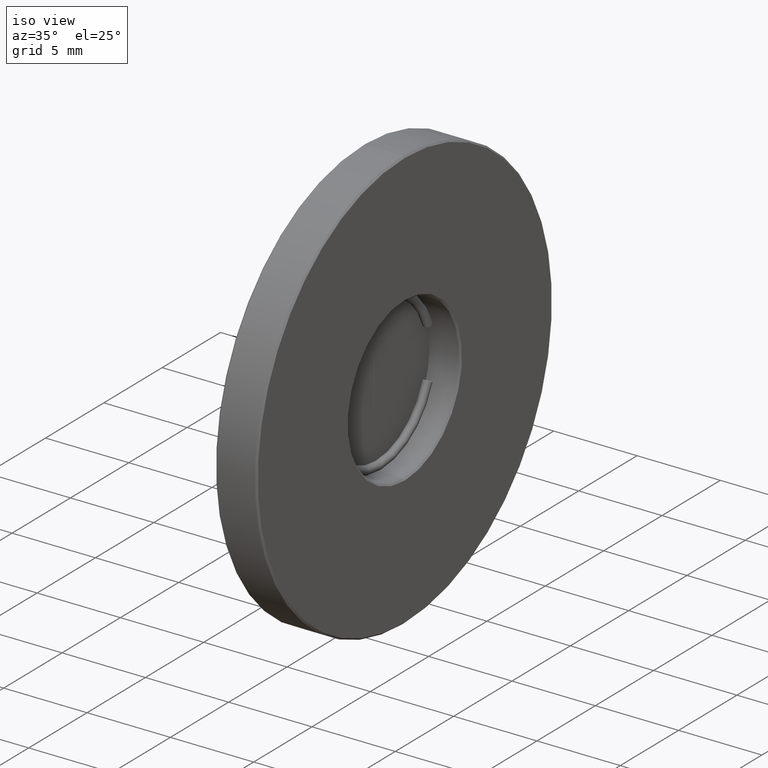
[diagram: clean part render]
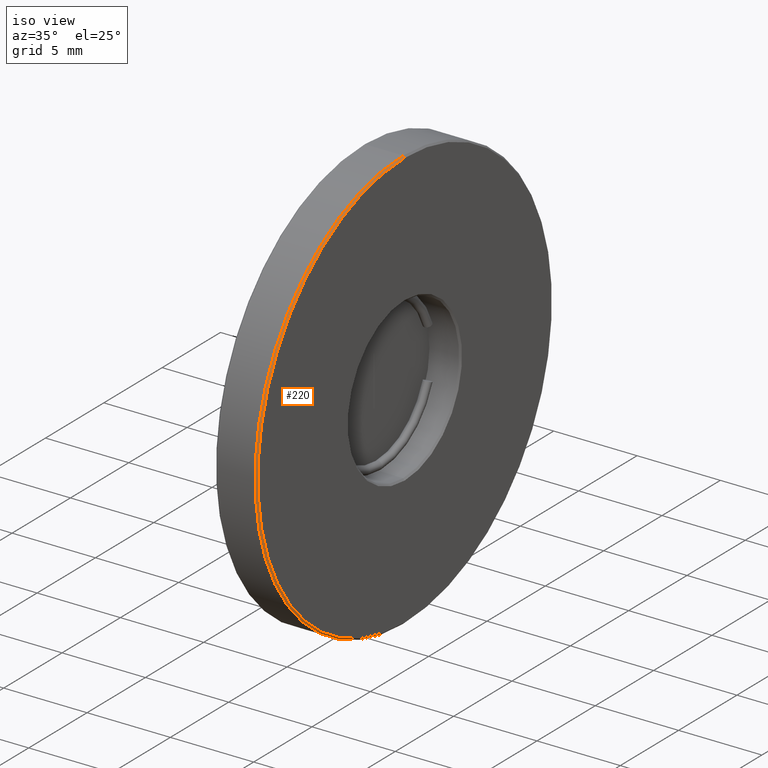
[diagram: same view with one face highlighted and labeled with its STEP entity id]
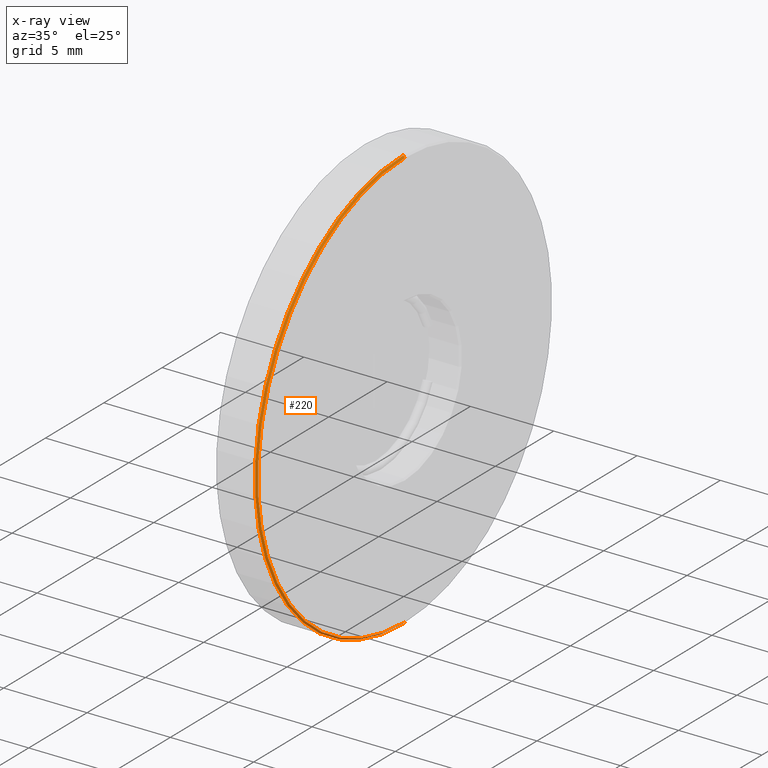
[diagram: x-ray of the same camera — body ghosted, the highlighted face saturated]
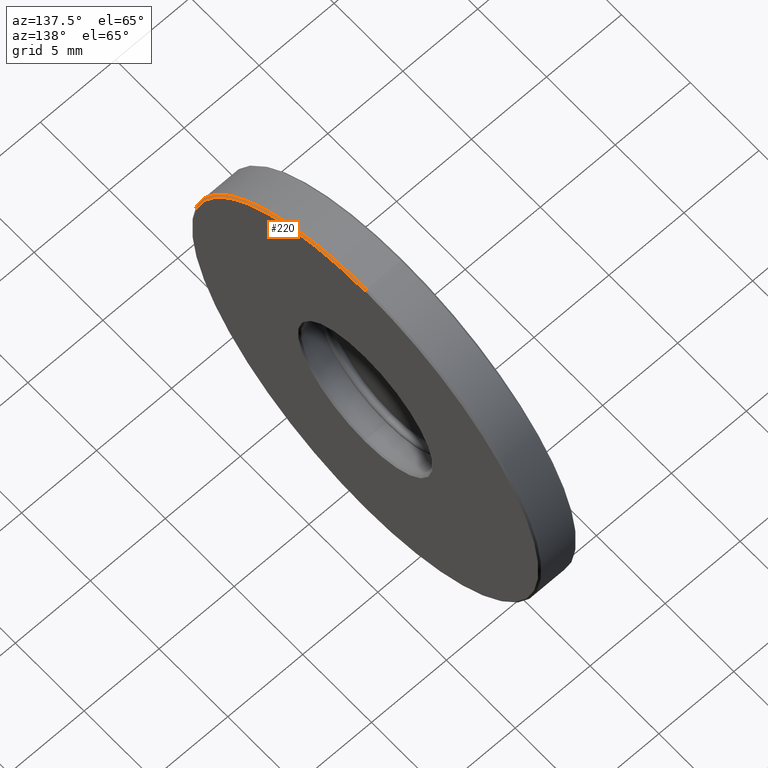
[diagram: same view with one face highlighted and labeled with its STEP entity id]
A machine part, iso view. The second image highlights one B-rep face of the part: STEP entity #220.
The next image is the same camera in x-ray: the body ghosted, the highlighted face saturated — about 0% of this face is hidden behind the body in this view.
A second angle (auxiliary view) of the same face is appended — the face is thin or edge-on in the first view.
In plain terms, the highlighted conical surface has half-angle 45 deg.
Its self-contained STEP definition (entity closure, byte-faithful):
#23 = CARTESIAN_POINT ( 'NONE',  ( -2.434863851252999645, 1.436758841085000071, 25.39999999999999858 ) ) ;
#36 = CARTESIAN_POINT ( 'NONE',  ( -2.434863851252999645, 1.436758841085000071, 25.39999999999999858 ) ) ;
#38 = VERTEX_POINT ( 'NONE', #520 ) ;
#74 = EDGE_CURVE ( 'NONE', #714, #585, #489, .T. ) ;
#90 = AXIS2_PLACEMENT_3D ( 'NONE', #36, #201, #932 ) ;
#107 = ORIENTED_EDGE ( 'NONE', *, *, #74, .F. ) ;
#155 = CARTESIAN_POINT ( 'NONE',  ( -2.534863851253000178, 1.436758841085000071, 25.39999999999999858 ) ) ;
#163 = CONICAL_SURFACE ( 'NONE', #90, 12.59999999999999964, 0.7853981633974568277 ) ;
#197 = CARTESIAN_POINT ( 'NONE',  ( -2.434863851252999645, 1.436758841085000071, 38.00000000000000000 ) ) ;
#201 = DIRECTION ( 'NONE',  ( -1.000000000000000000, 0.000000000000000000, 0.000000000000000000 ) ) ;
#211 = DIRECTION ( 'NONE',  ( 0.000000000000000000, 0.000000000000000000, -1.000000000000000000 ) ) ;
#220 = ADVANCED_FACE ( 'NONE', ( #642 ), #163, .T. ) ;
#229 = ORIENTED_EDGE ( 'NONE', *, *, #715, .T. ) ;
#282 = EDGE_CURVE ( 'NONE', #585, #438, #414, .T. ) ;
#298 = DIRECTION ( 'NONE',  ( 0.000000000000000000, 0.000000000000000000, -1.000000000000000000 ) ) ;
#299 = ORIENTED_EDGE ( 'NONE', *, *, #282, .F. ) ;
#366 = VECTOR ( 'NONE', #560, 1000.000000000000000 ) ;
#414 = LINE ( 'NONE', #631, #472 ) ;
#438 = VERTEX_POINT ( 'NONE', #655 ) ;
#449 = EDGE_LOOP ( 'NONE', ( #299, #107, #229, #760 ) ) ;
#470 = CARTESIAN_POINT ( 'NONE',  ( -2.434863851252999645, 1.436758841085001626, 12.79999999999999893 ) ) ;
#472 = VECTOR ( 'NONE', #490, 1000.000000000000000 ) ;
#489 = CIRCLE ( 'NONE', #569, 12.59999999999999964 ) ;
#490 = DIRECTION ( 'NONE',  ( -0.7071067811865415775, 8.659560562355003116E-17, -0.7071067811865535679 ) ) ;
#520 = CARTESIAN_POINT ( 'NONE',  ( -2.534863851253000178, 1.436758841085000071, 38.09999999999999432 ) ) ;
#560 = DIRECTION ( 'NONE',  ( -0.7071067811865415775, 0.000000000000000000, 0.7071067811865535679 ) ) ;
#569 = AXIS2_PLACEMENT_3D ( 'NONE', #23, #881, #298 ) ;
#583 = AXIS2_PLACEMENT_3D ( 'NONE', #155, #720, #211 ) ;
#585 = VERTEX_POINT ( 'NONE', #470 ) ;
#631 = CARTESIAN_POINT ( 'NONE',  ( -2.434863851252999645, 1.436758841085001626, 12.79999999999999893 ) ) ;
#639 = CARTESIAN_POINT ( 'NONE',  ( -2.434863851252999645, 1.436758841085000071, 38.00000000000000000 ) ) ;
#642 = FACE_OUTER_BOUND ( 'NONE', #449, .T. ) ;
#655 = CARTESIAN_POINT ( 'NONE',  ( -2.534863851253000178, 1.436758841085001626, 12.69999999999999929 ) ) ;
#714 = VERTEX_POINT ( 'NONE', #197 ) ;
#715 = EDGE_CURVE ( 'NONE', #714, #38, #934, .T. ) ;
#720 = DIRECTION ( 'NONE',  ( -1.000000000000000000, 0.000000000000000000, 0.000000000000000000 ) ) ;
#760 = ORIENTED_EDGE ( 'NONE', *, *, #854, .F. ) ;
#833 = CIRCLE ( 'NONE', #583, 12.69999999999999929 ) ;
#854 = EDGE_CURVE ( 'NONE', #438, #38, #833, .T. ) ;
#881 = DIRECTION ( 'NONE',  ( 1.000000000000000000, 0.000000000000000000, 0.000000000000000000 ) ) ;
#932 = DIRECTION ( 'NONE',  ( 0.000000000000000000, 0.000000000000000000, 1.000000000000000000 ) ) ;
#934 = LINE ( 'NONE', #639, #366 ) ;